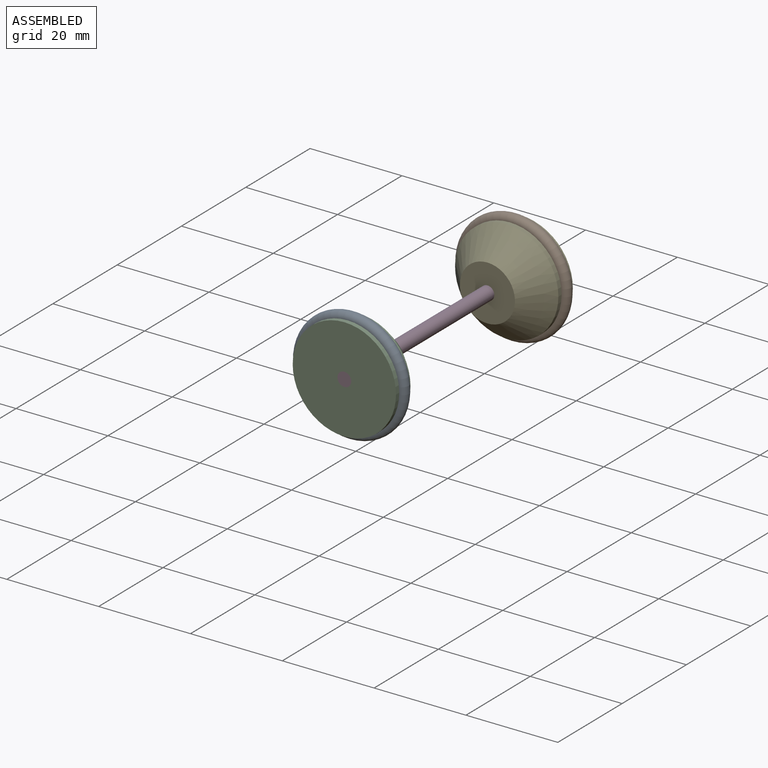
[diagram: assembled view]
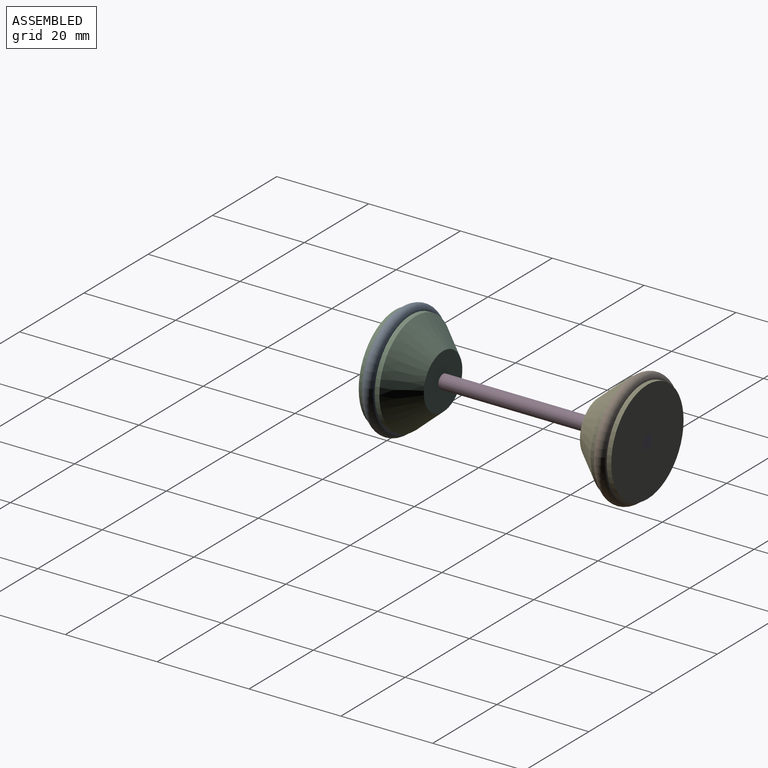
[diagram: assembled view, second angle]
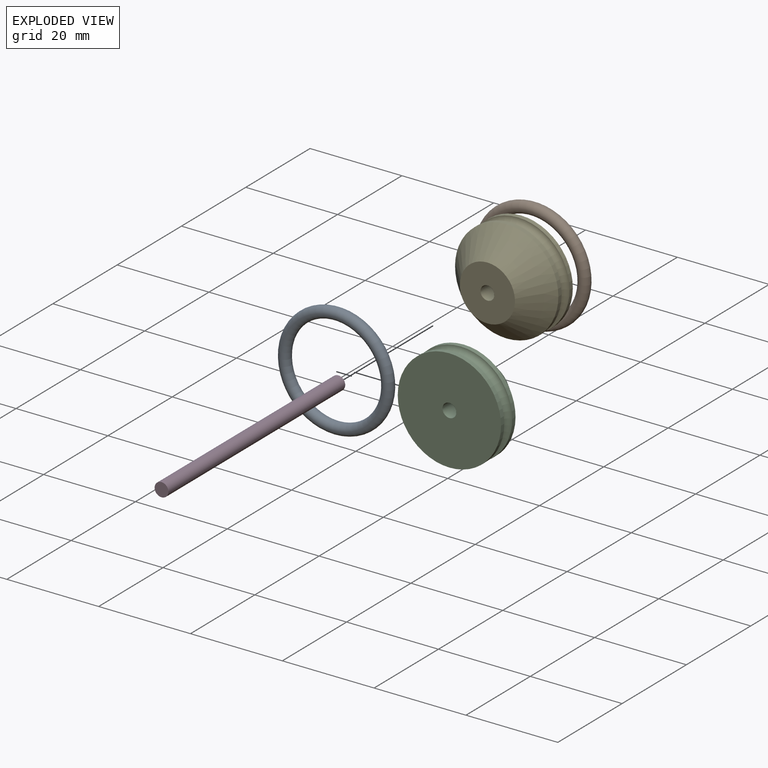
[diagram: exploded view]
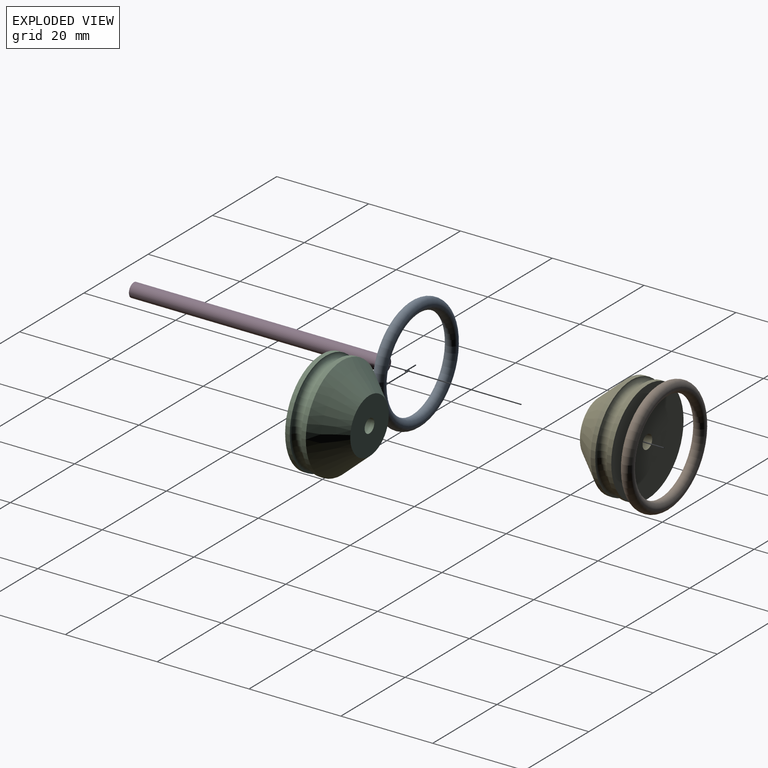
[diagram: exploded view, second angle]
ASSEMBLY  parts=5 mates=3
PART A: 1 faces, bbox 27.1x2.5x27.1 mm
  f0: torus R=11.25mm, axis (0,-1,0), area 555.2mm2
PART B: same geometry as A
PART C: 7 faces, bbox 26.3x10.5x26.3 mm
  f0: plane 12x12mm, normal (0,1,0), area 106mm2, adj f1,f6
  f1: cone r=11.25mm half-angle=41.2deg, axis (0,-1,0), area 432.1mm2, adj f0,f2
  f2: cylinder r=11.25mm len=22.5mm, axis (0,1,0), area 70.7mm2, adj f1,f3
  f3: torus R=11.25mm, axis (0,1,0), area 257.9mm2, adj f2,f4
  f4: cylinder r=11.25mm len=22.5mm, axis (0,1,0), area 70.7mm2, adj f3,f5
  f5: plane 22.5x22.5mm, normal (0,-1,0), area 390.5mm2, adj f4,f6
  f6: cylinder r=1.5mm len=10.5mm, axis (0,-1,0), area 99mm2, adj f0,f5
PART D: 3 faces, bbox 3x55x3 mm
  f0: plane 3x3mm, normal (0,-1,0), area 7.1mm2, adj f2
  f1: plane 3x3mm, normal (0,1,0), area 7.1mm2, adj f2
  f2: cylinder r=1.5mm len=55mm, axis (0,1,0), area 518.4mm2, adj f0,f1
PART E: same geometry as C
PLACE A t=(20,80.5,25)mm
PLACE B t=(20,131,25)mm
PLACE C t=(-6.58,9.27,-3.9)mm
PLACE D at identity
PLACE E rot(axis=(1,0,0),180deg) t=(-6.58,5.73,88.9)mm
MATE fastened E.f1 <-> D.f2  axis (0,1,0) through (-142.5,35,42.5)mm
MATE fastened A.f0 <-> C.f1  axis (0,-1,0) through (-142.5,-17.75,42.5)mm
MATE fastened B.f0 <-> E.f1  axis (0,-1,0) through (-142.5,32.75,42.5)mm
